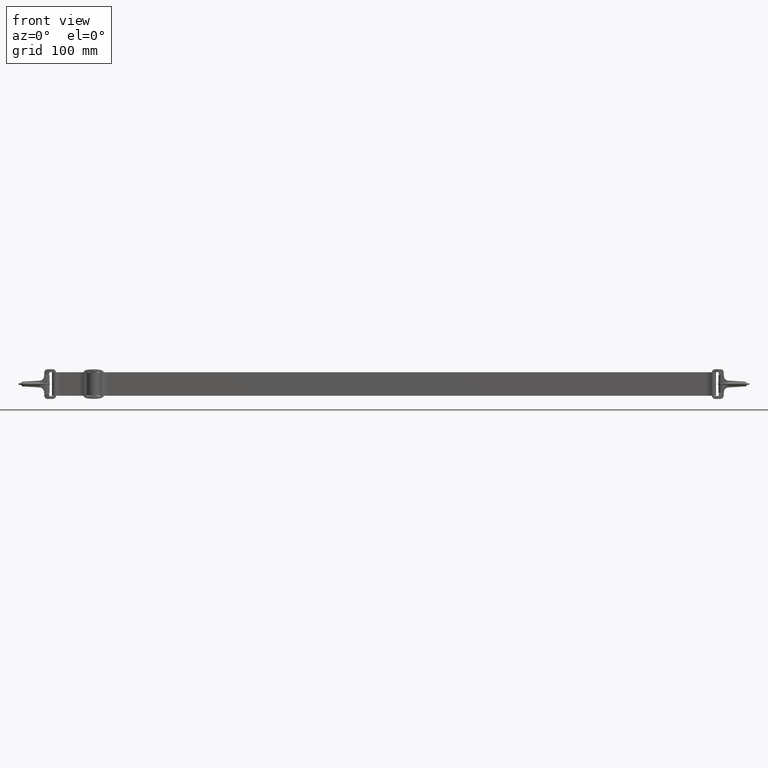
[diagram: clean part render]
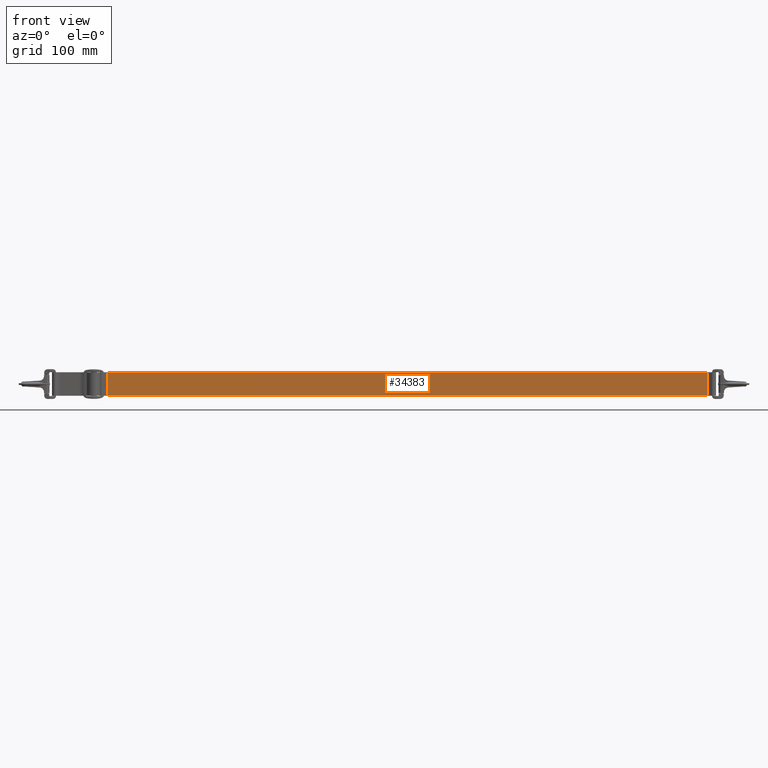
[diagram: same view with one face highlighted and labeled with its STEP entity id]
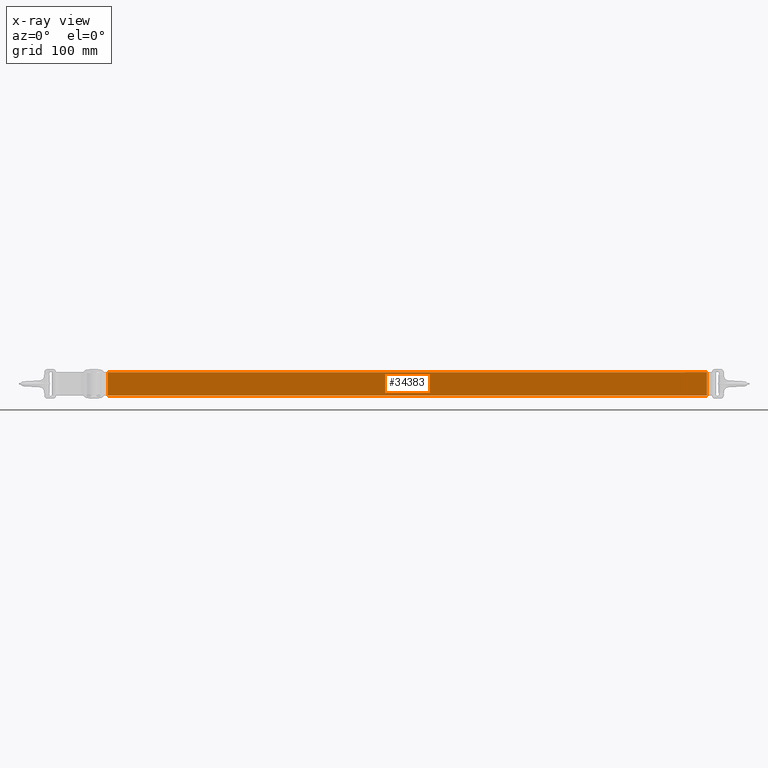
[diagram: x-ray of the same camera — body ghosted, the highlighted face saturated]
A machine part, front view. The second image highlights one B-rep face of the part: STEP entity #34383.
The next image is the same camera in x-ray: the body ghosted, the highlighted face saturated — about 0% of this face is hidden behind the body in this view.
In plain terms, the highlighted face is a freeform B-spline surface patch.
Its self-contained STEP definition (entity closure, byte-faithful):
#33186=CARTESIAN_POINT('',(1064.293536963791900,-3.200000000000000,-19.000000000305349));
#33187=VERTEX_POINT('',#33186);
#33201=CARTESIAN_POINT('',(99.073498568197493,-3.200000000000095,-19.000000000305349));
#33202=VERTEX_POINT('',#33201);
#33203=CARTESIAN_POINT('',(99.073498568197493,-3.200000000000095,-19.000000000305349));
#33204=CARTESIAN_POINT('',(1064.293536963791900,-3.200000000000000,-19.000000000305349));
#33205=QUASI_UNIFORM_CURVE('',1,(#33203,#33204),.UNSPECIFIED.,.F.,.U.);
#33206=EDGE_CURVE('',#33202,#33187,#33205,.T.);
#33300=CARTESIAN_POINT('',(99.073498568197493,-3.200000000000095,19.000000000305349));
#33301=VERTEX_POINT('',#33300);
#33315=CARTESIAN_POINT('',(1064.293536963791900,-3.200000000000000,19.000000000305349));
#33316=VERTEX_POINT('',#33315);
#33317=CARTESIAN_POINT('',(99.073498568197493,-3.200000000000095,19.000000000305349));
#33318=CARTESIAN_POINT('',(1064.293536963791900,-3.200000000000000,19.000000000305349));
#33319=QUASI_UNIFORM_CURVE('',1,(#33317,#33318),.UNSPECIFIED.,.F.,.U.);
#33320=EDGE_CURVE('',#33301,#33316,#33319,.T.);
#34360=CARTESIAN_POINT('',(1064.293536963791900,-3.200000000000000,19.000000000305349));
#34361=CARTESIAN_POINT('',(1064.293536963791900,-3.200000000000000,-19.000000000305349));
#34362=QUASI_UNIFORM_CURVE('',1,(#34360,#34361),.UNSPECIFIED.,.F.,.U.);
#34363=EDGE_CURVE('',#33316,#33187,#34362,.T.);
#34368=CARTESIAN_POINT('',(1112.506276010869000,-3.200000000000160,-20.898099926684480));
#34369=CARTESIAN_POINT('',(50.860733631902342,-3.200000000000160,-20.898099926684480));
#34370=CARTESIAN_POINT('',(1112.506276010869000,-3.200000000000160,20.898100945923900));
#34371=CARTESIAN_POINT('',(50.860733631902342,-3.200000000000160,20.898100945923900));
#34372=B_SPLINE_SURFACE_WITH_KNOTS('',1,1,((#34368,#34370),(#34369,#34371)),.UNSPECIFIED.,.F.,.F.,.U.,(2,2),(2,2),(0.0,1061.645542378966000),(0.0,41.796200872608381),.UNSPECIFIED.);
#34373=ORIENTED_EDGE('',*,*,#33206,.T.);
#34374=ORIENTED_EDGE('',*,*,#34363,.F.);
#34375=ORIENTED_EDGE('',*,*,#33320,.F.);
#34376=CARTESIAN_POINT('',(99.073498568197493,-3.200000000000095,19.000000000305349));
#34377=CARTESIAN_POINT('',(99.073498568197493,-3.200000000000095,-19.000000000305349));
#34378=QUASI_UNIFORM_CURVE('',1,(#34376,#34377),.UNSPECIFIED.,.F.,.U.);
#34379=EDGE_CURVE('',#33301,#33202,#34378,.T.);
#34380=ORIENTED_EDGE('',*,*,#34379,.T.);
#34381=EDGE_LOOP('',(#34373,#34374,#34375,#34380));
#34382=FACE_OUTER_BOUND('',#34381,.T.);
#34383=ADVANCED_FACE('',(#34382),#34372,.F.);